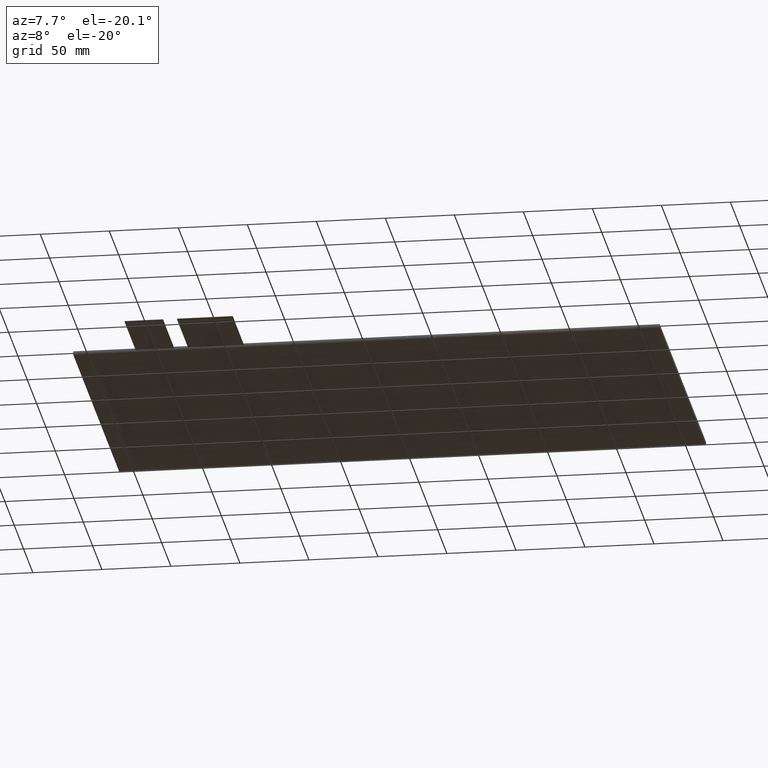
[diagram: clean part render]
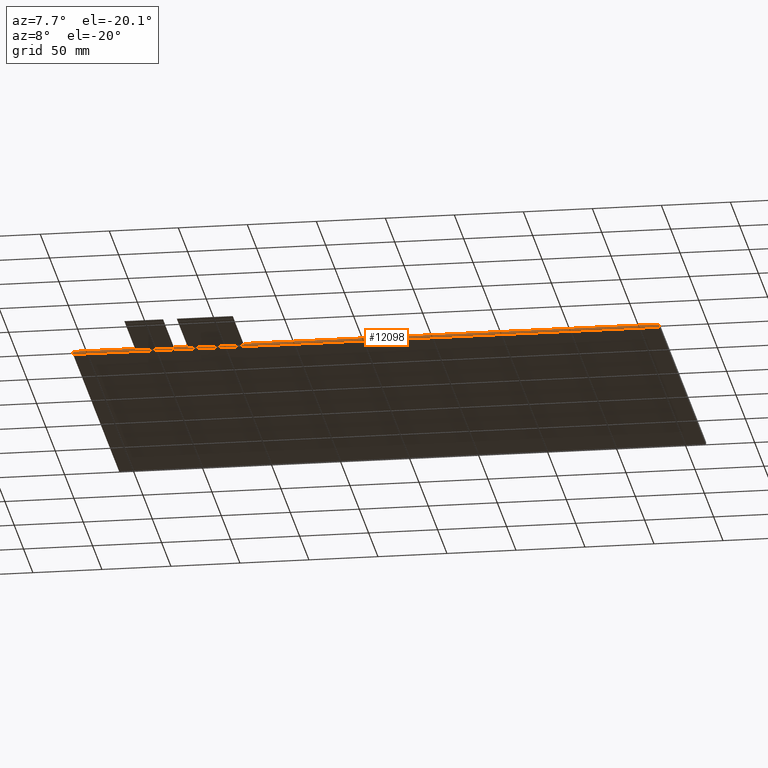
[diagram: same view with one face highlighted and labeled with its STEP entity id]
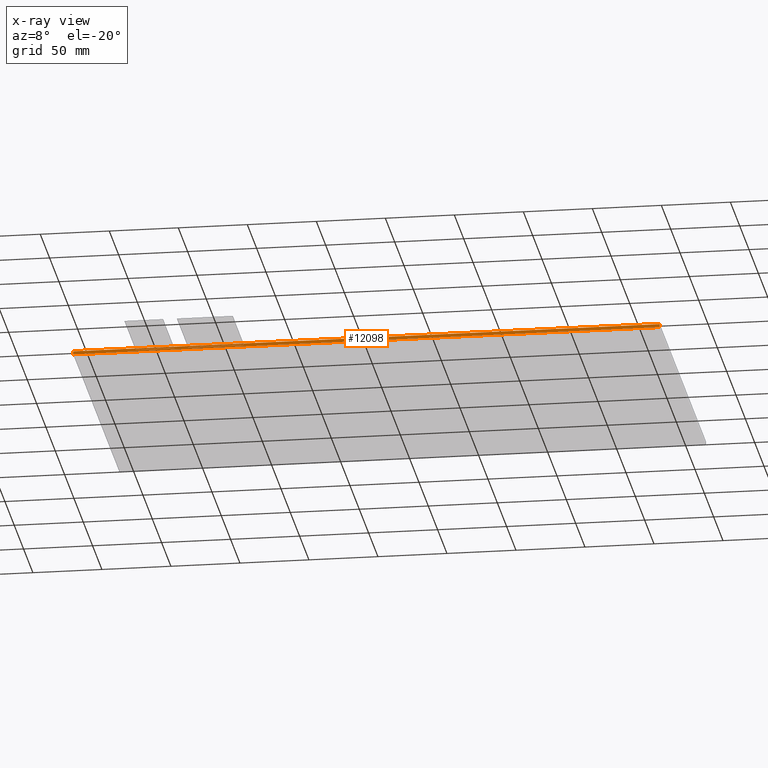
[diagram: x-ray of the same camera — body ghosted, the highlighted face saturated]
A machine part, auxiliary view. The second image highlights one B-rep face of the part: STEP entity #12098.
The next image is the same camera in x-ray: the body ghosted, the highlighted face saturated — about 0% of this face is hidden behind the body in this view.
In plain terms, the highlighted planar face has unit normal (0, -1, 0).
Its self-contained STEP definition (entity closure, byte-faithful):
#69=FACE_BOUND('',#1799,.T.);
#70=FACE_BOUND('',#1800,.T.);
#640=PLANE('',#12704);
#1218=FACE_OUTER_BOUND('',#1798,.T.);
#1798=EDGE_LOOP('',(#11493,#11494,#11495,#11496));
#1799=EDGE_LOOP('',(#11497,#11498,#11499,#11500));
#1800=EDGE_LOOP('',(#11501,#11502,#11503,#11504));
#3449=LINE('',#18900,#5157);
#3457=LINE('',#18916,#5165);
#3468=LINE('',#18938,#5176);
#3470=LINE('',#18941,#5178);
#3471=LINE('',#18943,#5179);
#3473=LINE('',#18948,#5181);
#3475=LINE('',#18951,#5183);
#3476=LINE('',#18953,#5184);
#3503=LINE('',#19010,#5211);
#3507=LINE('',#19017,#5215);
#3508=LINE('',#19020,#5216);
#3509=LINE('',#19021,#5217);
#5157=VECTOR('',#15471,10.);
#5165=VECTOR('',#15483,10.);
#5176=VECTOR('',#15504,10.);
#5178=VECTOR('',#15508,10.);
#5179=VECTOR('',#15511,10.);
#5181=VECTOR('',#15515,10.);
#5183=VECTOR('',#15519,10.);
#5184=VECTOR('',#15522,10.);
#5211=VECTOR('',#15569,10.);
#5215=VECTOR('',#15575,10.);
#5216=VECTOR('',#15578,10.);
#5217=VECTOR('',#15579,10.);
#6333=VERTEX_POINT('',#18897);
#6334=VERTEX_POINT('',#18899);
#6339=VERTEX_POINT('',#18913);
#6340=VERTEX_POINT('',#18915);
#6345=VERTEX_POINT('',#18935);
#6346=VERTEX_POINT('',#18937);
#6347=VERTEX_POINT('',#18945);
#6348=VERTEX_POINT('',#18947);
#6367=VERTEX_POINT('',#19007);
#6368=VERTEX_POINT('',#19009);
#6370=VERTEX_POINT('',#19015);
#6371=VERTEX_POINT('',#19019);
#8025=EDGE_CURVE('',#6334,#6333,#3449,.T.);
#8033=EDGE_CURVE('',#6340,#6339,#3457,.T.);
#8044=EDGE_CURVE('',#6346,#6345,#3468,.T.);
#8046=EDGE_CURVE('',#6339,#6346,#3470,.T.);
#8047=EDGE_CURVE('',#6345,#6340,#3471,.T.);
#8049=EDGE_CURVE('',#6348,#6347,#3473,.T.);
#8051=EDGE_CURVE('',#6333,#6348,#3475,.T.);
#8052=EDGE_CURVE('',#6347,#6334,#3476,.T.);
#8079=EDGE_CURVE('',#6367,#6368,#3503,.T.);
#8083=EDGE_CURVE('',#6367,#6370,#3507,.T.);
#8084=EDGE_CURVE('',#6371,#6370,#3508,.T.);
#8085=EDGE_CURVE('',#6368,#6371,#3509,.T.);
#11493=ORIENTED_EDGE('',*,*,#8079,.F.);
#11494=ORIENTED_EDGE('',*,*,#8083,.T.);
#11495=ORIENTED_EDGE('',*,*,#8084,.F.);
#11496=ORIENTED_EDGE('',*,*,#8085,.F.);
#11497=ORIENTED_EDGE('',*,*,#8044,.T.);
#11498=ORIENTED_EDGE('',*,*,#8047,.T.);
#11499=ORIENTED_EDGE('',*,*,#8033,.T.);
#11500=ORIENTED_EDGE('',*,*,#8046,.T.);
#11501=ORIENTED_EDGE('',*,*,#8049,.T.);
#11502=ORIENTED_EDGE('',*,*,#8052,.T.);
#11503=ORIENTED_EDGE('',*,*,#8025,.T.);
#11504=ORIENTED_EDGE('',*,*,#8051,.T.);
#12098=ADVANCED_FACE('',(#1218,#69,#70),#640,.T.);
#12704=AXIS2_PLACEMENT_3D('',#19018,#15576,#15577);
#15471=DIRECTION('',(0.,0.,1.));
#15483=DIRECTION('',(0.,0.,1.));
#15504=DIRECTION('',(0.,0.,-1.));
#15508=DIRECTION('',(1.,8.35932630306E-17,0.));
#15511=DIRECTION('',(-1.,-8.35932630306E-17,0.));
#15515=DIRECTION('',(0.,0.,-1.));
#15519=DIRECTION('',(1.,8.35932630306E-17,0.));
#15522=DIRECTION('',(-1.,-8.35932630306E-17,0.));
#15569=DIRECTION('',(1.,8.35932630306E-17,0.));
#15575=DIRECTION('',(0.,0.,-1.));
#15576=DIRECTION('center_axis',(8.35932630306E-17,-1.,0.));
#15577=DIRECTION('ref_axis',(-1.,-8.35932630306E-17,0.));
#15578=DIRECTION('',(-1.,-8.35932630306E-17,0.));
#15579=DIRECTION('',(0.,0.,-1.));
#18897=CARTESIAN_POINT('',(-167.87,-126.53,-1.1));
#18899=CARTESIAN_POINT('',(-167.87,-126.53,-1.2));
#18900=CARTESIAN_POINT('',(-167.87,-126.53,-0.55));
#18913=CARTESIAN_POINT('',(-129.87,-126.53,-1.1));
#18915=CARTESIAN_POINT('',(-129.87,-126.53,-1.2));
#18916=CARTESIAN_POINT('',(-129.87,-126.53,-0.55));
#18935=CARTESIAN_POINT('',(-89.3699999999999,-126.53,-1.2));
#18937=CARTESIAN_POINT('',(-89.3699999999999,-126.53,-1.1));
#18938=CARTESIAN_POINT('',(-89.3699999999999,-126.53,-0.55));
#18941=CARTESIAN_POINT('',(51.1050000000001,-126.53,-1.1));
#18943=CARTESIAN_POINT('',(51.1050000000001,-126.53,-1.2));
#18945=CARTESIAN_POINT('',(-139.87,-126.53,-1.2));
#18947=CARTESIAN_POINT('',(-139.87,-126.53,-1.1));
#18948=CARTESIAN_POINT('',(-139.87,-126.53,-0.55));
#18951=CARTESIAN_POINT('',(28.9800000000001,-126.53,-1.1));
#18953=CARTESIAN_POINT('',(28.9800000000001,-126.53,-1.2));
#19007=CARTESIAN_POINT('',(-213.17,-126.53,0.));
#19009=CARTESIAN_POINT('',(211.83,-126.53,0.));
#19010=CARTESIAN_POINT('',(-213.17,-126.53,0.));
#19015=CARTESIAN_POINT('',(-213.17,-126.53,-2.35));
#19017=CARTESIAN_POINT('',(-213.17,-126.53,0.));
#19018=CARTESIAN_POINT('Origin',(211.83,-126.53,0.));
#19019=CARTESIAN_POINT('',(211.83,-126.53,-2.35));
#19020=CARTESIAN_POINT('',(-213.17,-126.53,-2.35));
#19021=CARTESIAN_POINT('',(211.83,-126.53,0.));